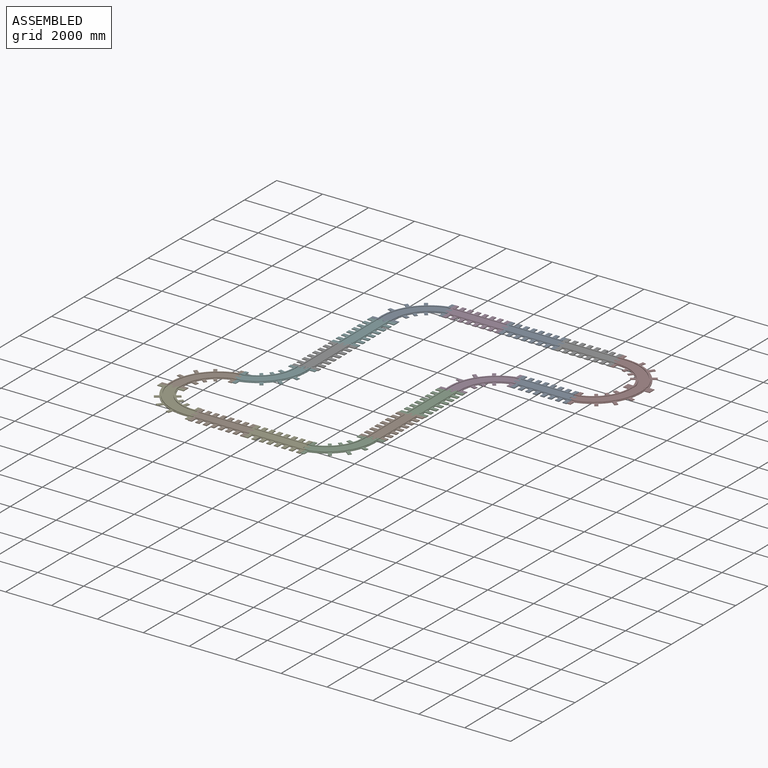
[diagram: assembled view]
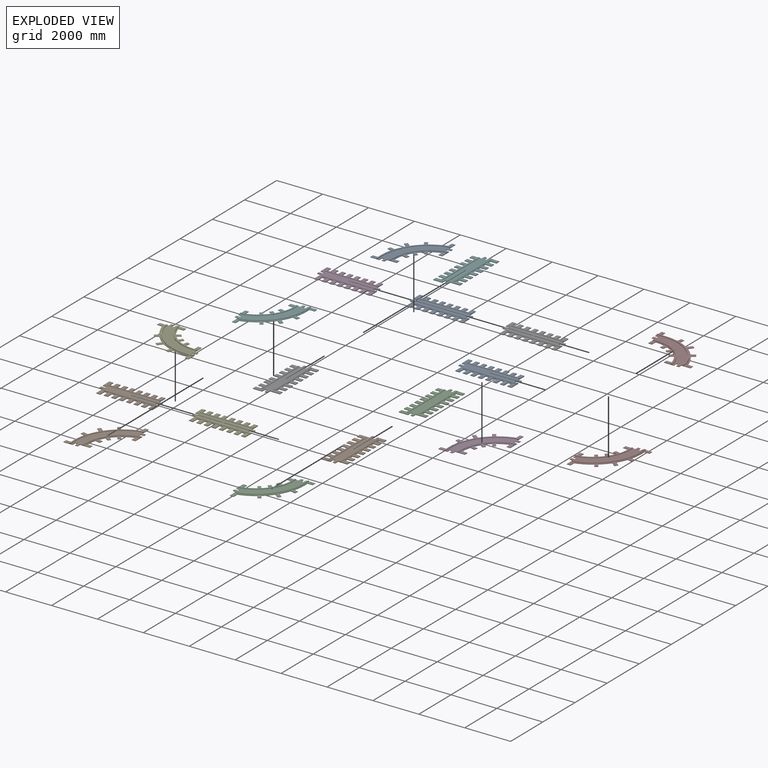
[diagram: exploded view]
GUIDED TOUR — MATED ASSEMBLY (Onshape document 573dee91e4b0ba160fa93150, AutoMate assembly 573dee91e4b0ba160fa93150_8a2142df090cf1d8a7745dd7_3bda912cf309139e063961fb_default)

This assembly has 18 components, labeled P0..P17 below (a component is one placed occurrence of a part; the same part can appear more than once), held together by 17 mates. A mate is a constraint between two components; its type names the relative motion it leaves free:
  FASTENED — locks the two components together rigidly (no relative motion).
Axis/direction vectors are unit vectors and 'through' points are millimeter coordinates, both in the assembly's world frame.

MATES
  1. FASTENED "Fastened 9": P5 <-> P16, direction (0.000, 1.000, 0.000) through (-12836.13, -176.65, -1598.57) mm
  2. FASTENED "Fastened 17": P13 <-> P9, direction (-1.000, 0.000, 0.000) through (-14344.43, -7193.45, -1598.57) mm
  3. FASTENED "Fastened 10": P6 <-> P5, direction (0.000, 1.000, 0.000) through (-12836.13, -2618.22, -1598.57) mm
  4. FASTENED "Fastened 4": P0 <-> P7, direction (1.000, 0.000, 0.000) through (-3393.63, -1669.07, -1598.57) mm
  5. FASTENED "Fastened 1": P14 <-> P8, direction (-1.000, 0.000, 0.000) through (-6520.73, 1692.69, -1598.57) mm
  6. FASTENED "Fastened 2": P15 <-> P14, direction (-1.000, 0.000, 0.000) through (-4079.16, 1692.69, -1598.57) mm
  7. FASTENED "Fastened 11": P10 <-> P3, direction (0.000, 1.000, 0.000) through (-7437.63, -3648.42, -1598.57) mm
  8. FASTENED "Fastened 15": P12 <-> P17, direction (1.000, 0.000, 0.000) through (-13658.90, -10555.21, -1598.57) mm
  9. FASTENED "Fastened 5": P3 <-> P0, direction (1.000, 0.000, 0.000) through (-5835.20, -1669.07, -1598.57) mm
  10. FASTENED "Fastened 12": P2 <-> P1, direction (0.000, 1.000, 0.000) through (-7437.63, -8531.57, -1598.57) mm
  11. FASTENED "Fastened 8": P1 <-> P10, direction (0.000, 1.000, 0.000) through (-7437.63, -6089.99, -1598.57) mm
  12. FASTENED "Fastened 3": P7 <-> P15, direction (0.000, 1.000, 0.000) through (-1945.50, 200.27, -1598.57) mm
  13. FASTENED "Fastened 13": P4 <-> P2, direction (1.000, 0.000, 0.000) through (-8775.75, -10555.21, -1598.57) mm
  14. FASTENED "Fastened 7": P16 <-> P11, direction (1.000, 0.000, 0.000) through (-11233.70, 1802.70, -1598.57) mm
  15. FASTENED "Fastened 6": P11 <-> P8, direction (1.000, 0.000, 0.000) through (-8792.13, 1802.70, -1598.57) mm
  16. FASTENED "Fastened 16": P9 <-> P12, direction (0.000, -1.000, 0.000) through (-15682.54, -9217.09, -1598.57) mm
  17. FASTENED "Fastened 14": P17 <-> P4, direction (1.000, 0.000, 0.000) through (-11217.33, -10555.21, -1598.57) mm

ASSEMBLY ORDER
  1. P10 — the base component [order verified]
  2. P3 [order verified]
  3. P4 [order verified]
  4. P17 [order verified]
  5. P0 [order verified]
  6. P14 [order verified]
  7. P8 [order verified]
  8. P6 [order verified]
  9. P11 [order verified]
  10. P5 [order verified]
  11. P1 [order verified]
  12. P13 [order verified]
  13. P9 [order verified]
  14. P7 [order verified]
  15. P2 [order verified]
  16. P16 [order verified]
  17. P12 [order verified]
  18. P15 [order verified]
Order-tag legend:
  [order verified] — this step's position reverses a verified removal order: the component was checked to insert without passing through the ones already placed.

Of the 18 components, 18 carry the full construction recipe — the FeatureScript program that regenerates the part's solid from scratch; the rest are supplied as boundary geometry only.
Because this assembly has more than 12 components, the tour below covers the 12 most significant ones individually (every recipe-attached component first, then the largest by part volume), in assembly order; the remaining 6 are summarized together in a grouped section at the end.
Each toured component is shown spotlighted twice — in the assembled view, then in the exploded view, where a leader line traces a displaced component back to its assembled socket (saturated green if recipe-attached, orange if geometry-only; every other component desaturated gray) — followed by its recipe or geometry summary and the mates that hold it.
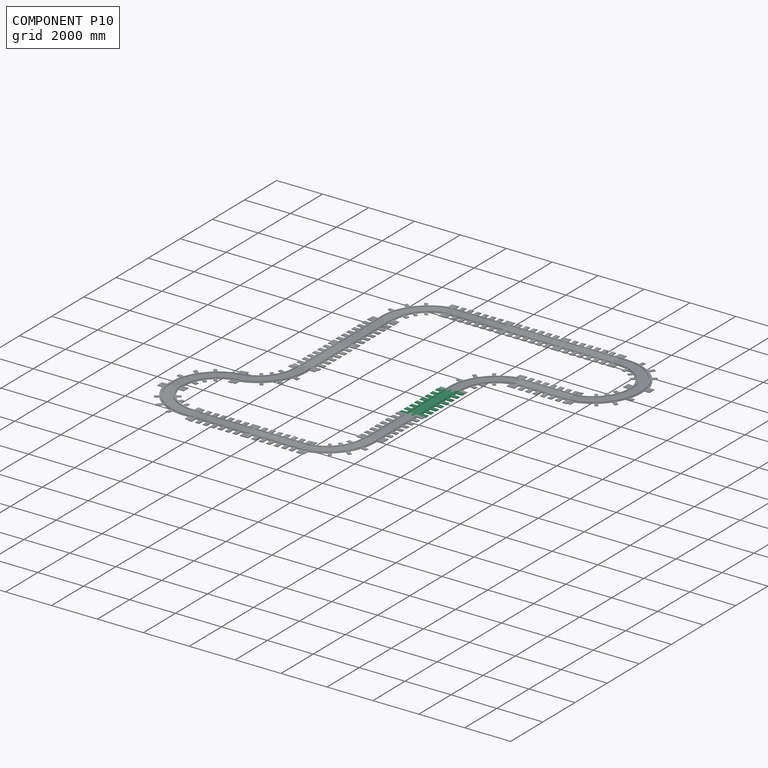
[diagram: component P10 — assembled]
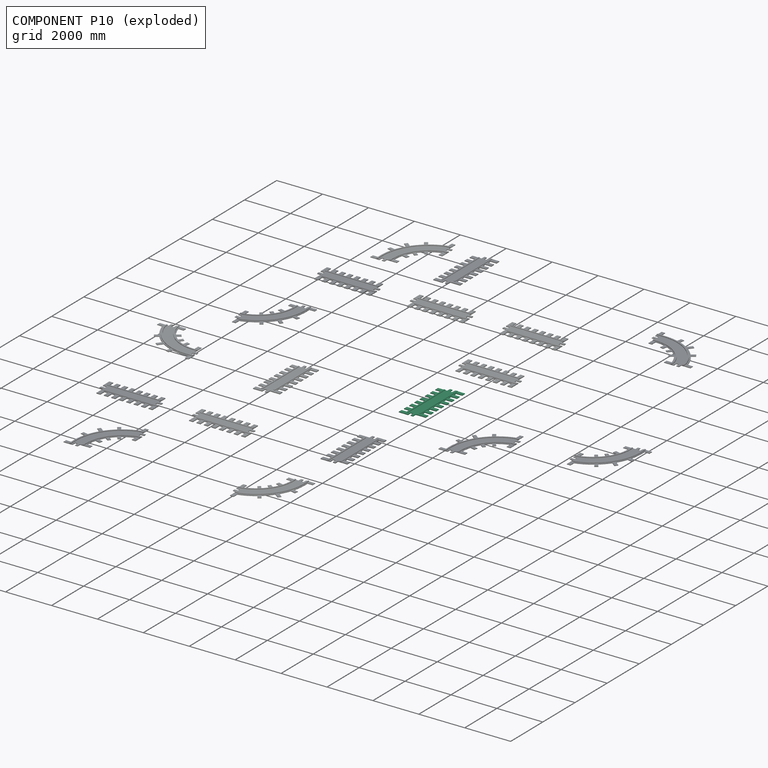
[diagram: component P10 — exploded]
COMPONENT P10 — same part as P0 (CADFS 00159002); its construction recipe is shown at P0.
Held by: FASTENED mate "Fastened 11" to P3; FASTENED mate "Fastened 8" to P1.
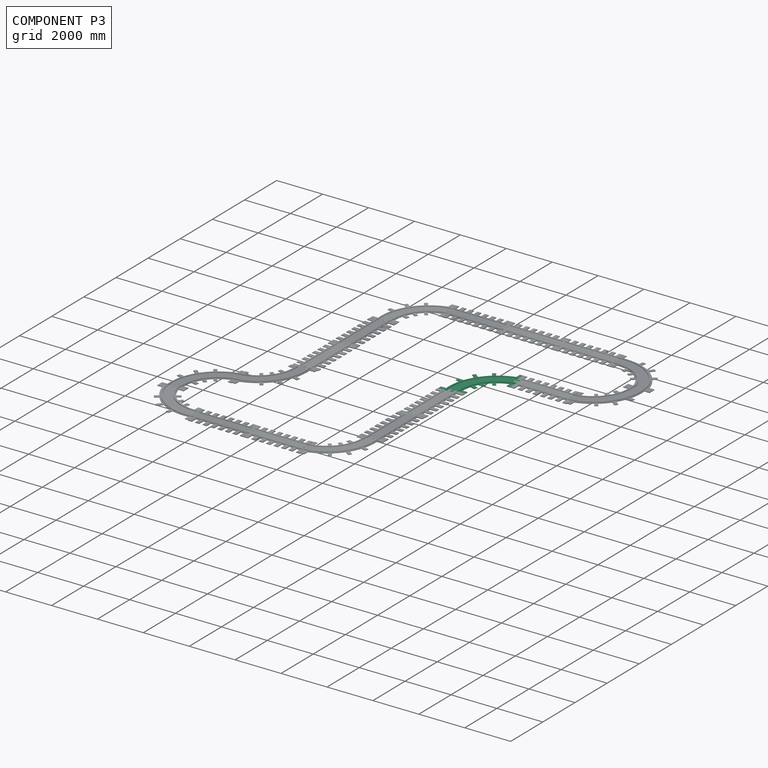
[diagram: component P3 — assembled]
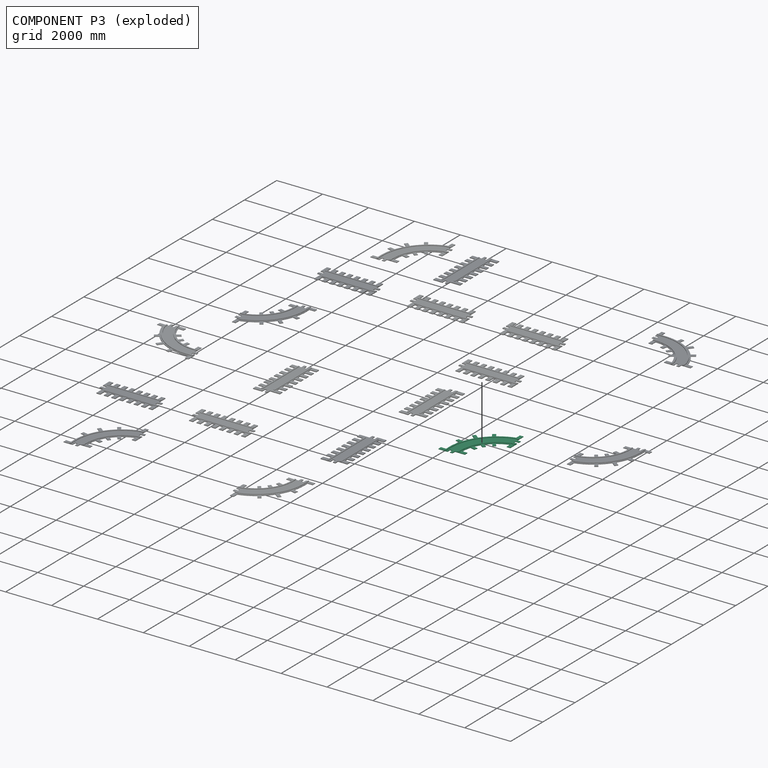
[diagram: component P3 — exploded]
COMPONENT P3 — same part as P2 (CADFS 00160971); its construction recipe is shown at P2.
Held by: FASTENED mate "Fastened 11" to P10; FASTENED mate "Fastened 5" to P0.
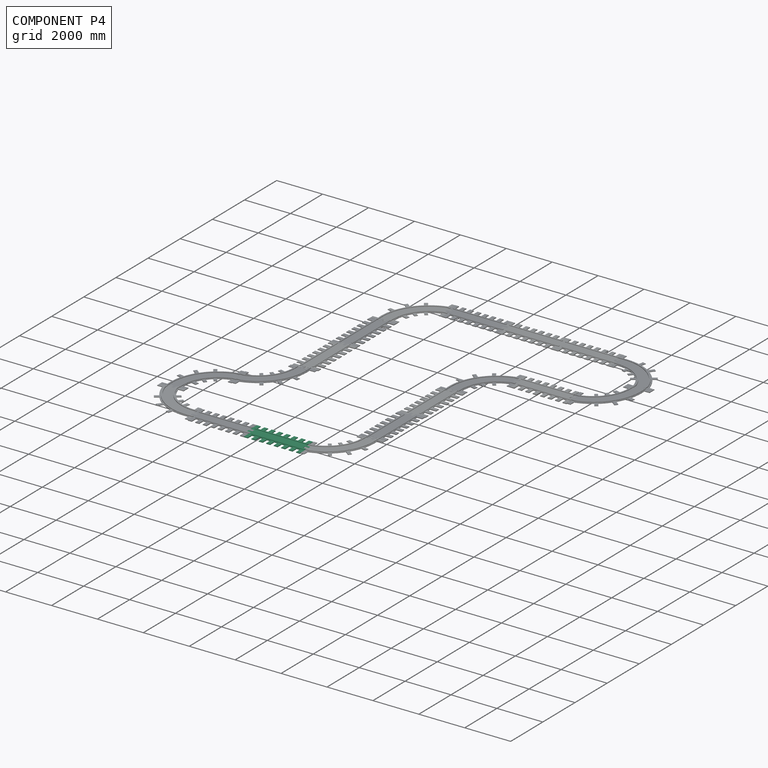
[diagram: component P4 — assembled]
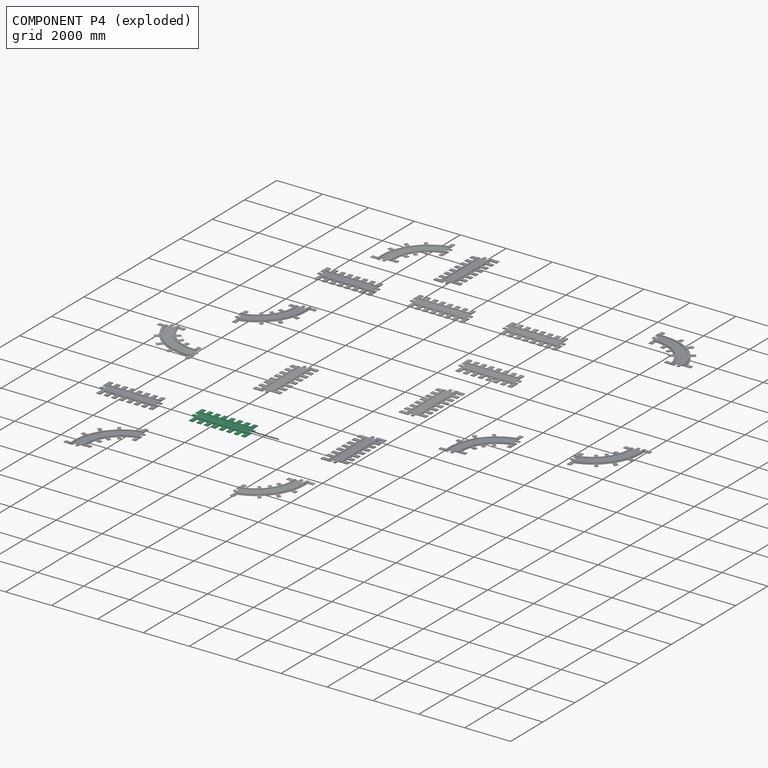
[diagram: component P4 — exploded]
COMPONENT P4 — same part as P0 (CADFS 00159002); its construction recipe is shown at P0.
Held by: FASTENED mate "Fastened 13" to P2; FASTENED mate "Fastened 14" to P17.
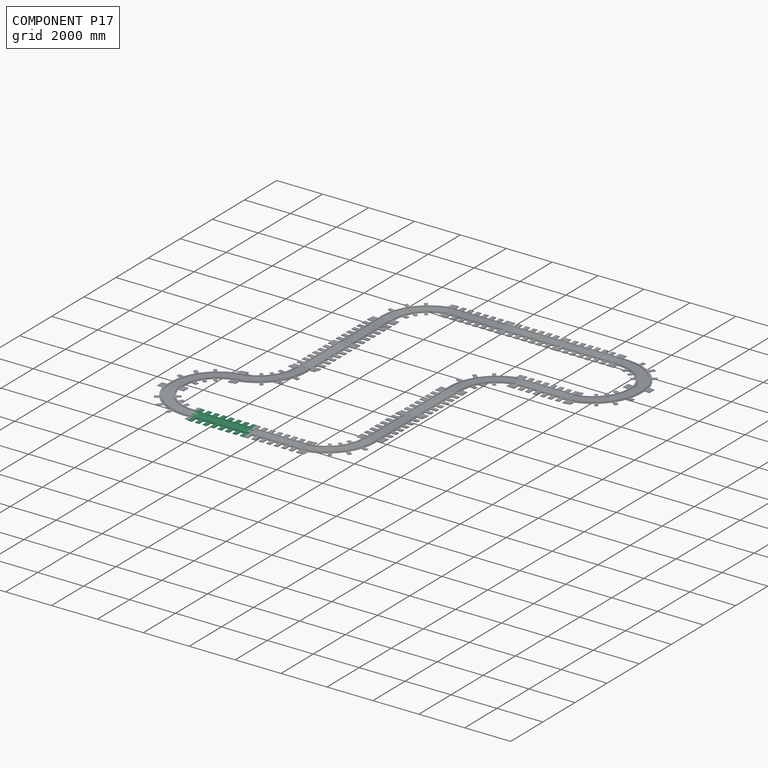
[diagram: component P17 — assembled]
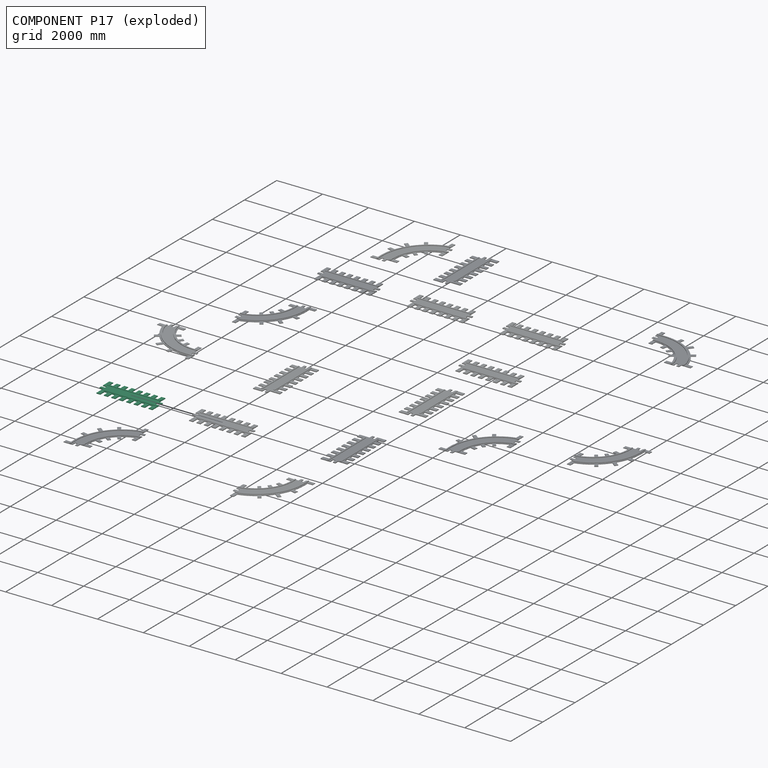
[diagram: component P17 — exploded]
COMPONENT P17 — same part as P0 (CADFS 00159002); its construction recipe is shown at P0.
Held by: FASTENED mate "Fastened 15" to P12; FASTENED mate "Fastened 14" to P4.
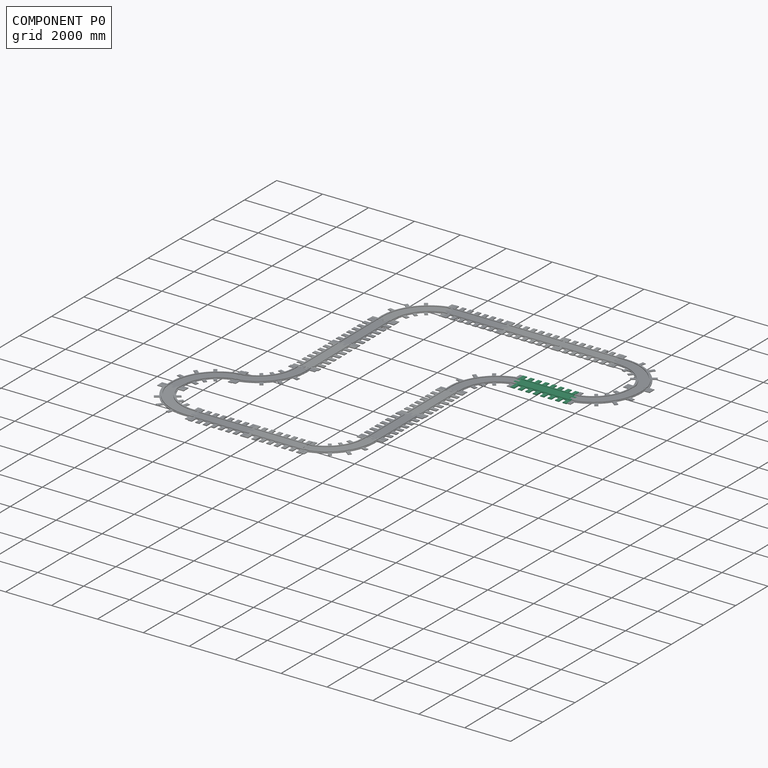
[diagram: component P0 — assembled]
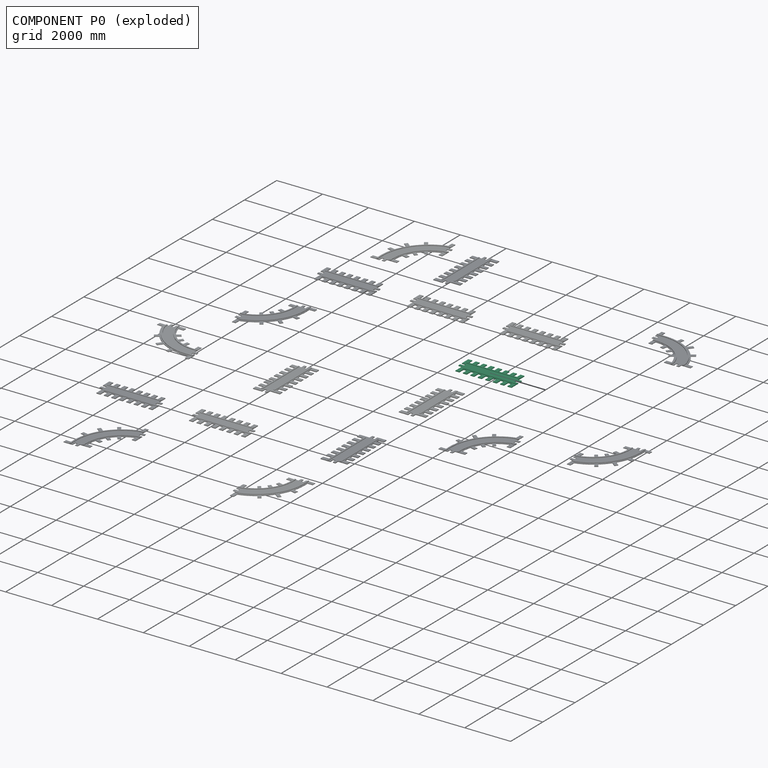
[diagram: component P0 — exploded]
COMPONENT P0 — recipe-attached (CADFS 00159002, mesh-verified: the recipe's output STEP matches this component's geometry to below the mesh-comparison resolution (tessellation chordal tolerance ~4.22 mm)).
Held by: FASTENED mate "Fastened 4" to P7; FASTENED mate "Fastened 5" to P3.
Construction recipe (FeatureScript — the CAD program that rebuilds this solid; sketch coordinates are in the units given by the * unit suffixes, e.g. mm):

FeatureScript 1511;
import(path : "onshape/std/geometry.fs", version : "1511.0");
import(path : "onshape/std/common.fs", version : "1511.0");
const mm = millimeter;
const VERTEX = EntityType.VERTEX;
const EDGE = EntityType.EDGE;
const FACE = EntityType.FACE;
const BODY = EntityType.BODY;
function v(x, y){return vector(x, y);}
function OD(order){return orderDisambiguation(order);}
function OSD(set){return originalSetDisambiguation(set);}
function TD(topology){return topologyDisambiguation(topology);}
function TDD(query){return trueDependencyDisambiguation(query);}
function sQuery(a, b, c) {return sketchEntityQuery(a, b, c);}

annotation { "Feature Type Name" : "Feature", "Feature Type Description" : "" }
export const myFeature = defineFeature(function(context is Context, id is Id, definition is map)
    precondition{}
    {
        {
            var Q0;
            Q0=qCreatedBy(makeId("Top.planeOp"),FACE);
            var sketch = newSketch(context, id + "F0", { "sketchPlane" : qUnion([Q0])});
            skLineSegment(sketch, "E0", {"start": v(0, 0) * mm, "end": v(157.48, 0) * mm});
            skLineSegment(sketch, "E1", {"start": v(170.18, -12.7) * mm, "end": v(170.18, -97.3) * mm});
            skLineSegment(sketch, "E2", {"start": v(157.48, -110) * mm, "end": v(12.7, -110) * mm});
            skLineSegment(sketch, "E3", {"start": v(0, -122.7) * mm, "end": v(0, -207.32) * mm});
            skLineSegment(sketch, "E4", {"start": v(12.7, -220.02) * mm, "end": v(170.18, -220.02) * mm});
            skLineSegment(sketch, "E5", {"start": v(170.18, -220.02) * mm, "end": v(170.18, -647.87) * mm});
            skLineSegment(sketch, "E6", {"start": v(170.18, -647.87) * mm, "end": v(0, -647.87) * mm});
            skLineSegment(sketch, "E7", {"start": v(0, -647.87) * mm, "end": v(0, -389.82) * mm});
            skLineSegment(sketch, "E8", {"start": v(0, -389.82) * mm, "end": v(-154.3, -389.82) * mm});
            skLineSegment(sketch, "E9", {"start": v(-154.3, -389.82) * mm, "end": v(-154.3, -647.87) * mm});
            skLineSegment(sketch, "E10", {"start": v(-154.3, -647.87) * mm, "end": v(-324.49, -647.87) * mm});
            skLineSegment(sketch, "E11", {"start": v(-324.49, -647.87) * mm, "end": v(-324.49, -389.82) * mm});
            skLineSegment(sketch, "E12", {"start": v(-324.49, -389.82) * mm, "end": v(-478.8, -389.82) * mm});
            skLineSegment(sketch, "E13", {"start": v(-478.8, -389.82) * mm, "end": v(-478.8, -647.87) * mm});
            skLineSegment(sketch, "E14", {"start": v(-478.8, -647.87) * mm, "end": v(-648.97, -647.87) * mm});
            skLineSegment(sketch, "E15", {"start": v(-648.97, -647.87) * mm, "end": v(-648.97, -389.82) * mm});
            skLineSegment(sketch, "E16", {"start": v(-648.97, -389.82) * mm, "end": v(-803.28, -389.82) * mm});
            skLineSegment(sketch, "E17", {"start": v(-803.28, -389.82) * mm, "end": v(-803.28, -647.87) * mm});
            skLineSegment(sketch, "E18", {"start": v(-803.28, -647.87) * mm, "end": v(-973.46, -647.87) * mm});
            skLineSegment(sketch, "E19", {"start": v(-973.46, -647.87) * mm, "end": v(-973.46, -389.82) * mm});
            skPoint(sketch, "E20.visualSharp", {"position": v(170.18, 0) * mm});
            skArc(sketch, "E20.filletArc", {"start": v(170.18, -12.7) * mm, "mid": v(166.46, -3.72) * mm, "end": v(157.48, 0) * mm});
            skPoint(sketch, "E21.visualSharp", {"position": v(170.18, -110) * mm});
            skArc(sketch, "E21.filletArc", {"start": v(157.48, -110) * mm, "mid": v(166.46, -106.29) * mm, "end": v(170.18, -97.3) * mm});
            skPoint(sketch, "E22.visualSharp", {"position": v(0, -220.02) * mm});
            skArc(sketch, "E22.filletArc", {"start": v(0, -207.32) * mm, "mid": v(3.72, -216.3) * mm, "end": v(12.7, -220.02) * mm});
            skPoint(sketch, "E23.visualSharp", {"position": v(0, -110) * mm});
            skArc(sketch, "E23.filletArc", {"start": v(12.7, -110) * mm, "mid": v(3.72, -113.73) * mm, "end": v(0, -122.7) * mm});
            skLineSegment(sketch, "E24", {"start": v(-973.46, -389.82) * mm, "end": v(-1127.76, -389.82) * mm});
            skLineSegment(sketch, "E25", {"start": v(-1127.76, -389.82) * mm, "end": v(-1127.76, -647.87) * mm});
            skLineSegment(sketch, "E26", {"start": v(-1127.76, -647.87) * mm, "end": v(-1297.94, -647.87) * mm});
            skLineSegment(sketch, "E27", {"start": v(-1297.94, -647.87) * mm, "end": v(-1297.94, -389.82) * mm});
            skLineSegment(sketch, "E28", {"start": v(-1297.94, -389.82) * mm, "end": v(-1452.25, -389.82) * mm});
            skLineSegment(sketch, "E29", {"start": v(-1452.25, -389.82) * mm, "end": v(-1452.25, -647.87) * mm});
            skLineSegment(sketch, "E30", {"start": v(-1452.25, -647.87) * mm, "end": v(-1622.42, -647.87) * mm});
            skLineSegment(sketch, "E31", {"start": v(-1622.42, -647.87) * mm, "end": v(-1622.42, -389.82) * mm});
            skLineSegment(sketch, "E32", {"start": v(-1622.42, -389.82) * mm, "end": v(-1776.73, -389.82) * mm});
            skLineSegment(sketch, "E33", {"start": v(-1776.73, -389.82) * mm, "end": v(-1776.73, -647.87) * mm});
            skLineSegment(sketch, "E34", {"start": v(-1776.73, -647.87) * mm, "end": v(-1946.9, -647.87) * mm});
            skLineSegment(sketch, "E35", {"start": v(-1946.9, -647.87) * mm, "end": v(-1946.9, -389.82) * mm});
            skLineSegment(sketch, "E36", {"start": v(-1946.9, -389.82) * mm, "end": v(-2101.22, -389.82) * mm});
            skLineSegment(sketch, "E37", {"start": v(-2101.22, -389.82) * mm, "end": v(-2101.22, -647.87) * mm});
            skLineSegment(sketch, "E38", {"start": v(-2101.22, -647.87) * mm, "end": v(-2271.4, -647.87) * mm});
            skLineSegment(sketch, "E39", {"start": v(-2271.4, -647.87) * mm, "end": v(-2271.4, -220.02) * mm});
            skLineSegment(sketch, "E40", {"start": v(-2271.4, -220.02) * mm, "end": v(-2428.88, -220.02) * mm});
            skLineSegment(sketch, "E41", {"start": v(-2441.58, -207.32) * mm, "end": v(-2441.58, -122.7) * mm});
            skLineSegment(sketch, "E42", {"start": v(-2428.88, -110) * mm, "end": v(-2284.1, -110) * mm});
            skLineSegment(sketch, "E43", {"start": v(-2271.4, -97.3) * mm, "end": v(-2271.4, -12.7) * mm});
            skLineSegment(sketch, "E44", {"start": v(-2284.1, 0) * mm, "end": v(-2441.58, 0) * mm});
            skLineSegment(sketch, "E45", {"start": v(-2441.58, 0) * mm, "end": v(-2441.58, 399.88) * mm});
            skPoint(sketch, "E46.visualSharp", {"position": v(-2441.58, -110) * mm});
            skArc(sketch, "E46.filletArc", {"start": v(-2428.88, -110) * mm, "mid": v(-2437.86, -113.73) * mm, "end": v(-2441.58, -122.7) * mm});
            skPoint(sketch, "E47.visualSharp", {"position": v(-2441.58, -220.02) * mm});
            skArc(sketch, "E47.filletArc", {"start": v(-2441.58, -207.32) * mm, "mid": v(-2437.86, -216.3) * mm, "end": v(-2428.88, -220.02) * mm});
            skPoint(sketch, "E48.visualSharp", {"position": v(-2271.4, -110) * mm});
            skArc(sketch, "E48.filletArc", {"start": v(-2284.1, -110) * mm, "mid": v(-2275.11, -106.29) * mm, "end": v(-2271.4, -97.3) * mm});
            skPoint(sketch, "E49.visualSharp", {"position": v(-2271.4, 0) * mm});
            skArc(sketch, "E49.filletArc", {"start": v(-2271.4, -12.7) * mm, "mid": v(-2275.11, -3.72) * mm, "end": v(-2284.1, 0) * mm});
            skLineSegment(sketch, "E50", {"start": v(-2441.58, 399.88) * mm, "end": v(-2271.4, 399.88) * mm});
            skLineSegment(sketch, "E51", {"start": v(-2271.4, 399.88) * mm, "end": v(-2271.4, 172.14) * mm});
            skLineSegment(sketch, "E52", {"start": v(-2271.4, 172.14) * mm, "end": v(-2117.1, 172.14) * mm});
            skLineSegment(sketch, "E53", {"start": v(-2117.1, 172.14) * mm, "end": v(-2117.1, 399.88) * mm});
            skLineSegment(sketch, "E54", {"start": v(-2117.1, 399.88) * mm, "end": v(-1946.91, 399.88) * mm});
            skLineSegment(sketch, "E55", {"start": v(-1946.91, 399.88) * mm, "end": v(-1946.91, 172.14) * mm});
            skLineSegment(sketch, "E56", {"start": v(-1946.91, 172.14) * mm, "end": v(-1792.6, 172.14) * mm});
            skLineSegment(sketch, "E57", {"start": v(-1792.6, 172.14) * mm, "end": v(-1792.6, 399.88) * mm});
            skLineSegment(sketch, "E58", {"start": v(-1792.6, 399.88) * mm, "end": v(-1622.43, 399.88) * mm});
            skLineSegment(sketch, "E59", {"start": v(-1622.43, 399.88) * mm, "end": v(-1622.43, 172.14) * mm});
            skLineSegment(sketch, "E60", {"start": v(-1622.43, 172.14) * mm, "end": v(-1468.12, 172.14) * mm});
            skLineSegment(sketch, "E61", {"start": v(-1468.12, 172.14) * mm, "end": v(-1468.12, 400.96) * mm});
            skLineSegment(sketch, "E62", {"start": v(-1468.12, 400.96) * mm, "end": v(-1297.94, 400.96) * mm});
            skLineSegment(sketch, "E63", {"start": v(-1297.94, 400.96) * mm, "end": v(-1297.94, 172.14) * mm});
            skLineSegment(sketch, "E64", {"start": v(-1297.94, 172.14) * mm, "end": v(-1143.64, 172.14) * mm});
            skLineSegment(sketch, "E65", {"start": v(-1143.64, 172.14) * mm, "end": v(-1143.64, 400.96) * mm});
            skLineSegment(sketch, "E66", {"start": v(-1143.64, 400.96) * mm, "end": v(-973.46, 400.96) * mm});
            skLineSegment(sketch, "E67", {"start": v(-973.46, 400.96) * mm, "end": v(-973.46, 172.14) * mm});
            skLineSegment(sketch, "E68", {"start": v(-973.46, 172.14) * mm, "end": v(-819.15, 172.14) * mm});
            skLineSegment(sketch, "E69", {"start": v(-819.15, 172.14) * mm, "end": v(-819.15, 400.96) * mm});
            skLineSegment(sketch, "E70", {"start": v(-819.15, 400.96) * mm, "end": v(-648.97, 400.96) * mm});
            skLineSegment(sketch, "E71", {"start": v(-648.97, 400.96) * mm, "end": v(-648.97, 172.14) * mm});
            skLineSegment(sketch, "E72", {"start": v(-648.97, 172.14) * mm, "end": v(-494.67, 172.14) * mm});
            skLineSegment(sketch, "E73", {"start": v(-494.67, 172.14) * mm, "end": v(-494.67, 400.96) * mm});
            skLineSegment(sketch, "E74", {"start": v(-494.67, 400.96) * mm, "end": v(-324.49, 400.96) * mm});
            skLineSegment(sketch, "E75", {"start": v(-324.49, 400.96) * mm, "end": v(-324.49, 172.14) * mm});
            skLineSegment(sketch, "E76", {"start": v(-324.49, 172.14) * mm, "end": v(-170.18, 172.14) * mm});
            skLineSegment(sketch, "E77", {"start": v(-170.18, 172.14) * mm, "end": v(-170.18, 400.96) * mm});
            skLineSegment(sketch, "E78", {"start": v(-170.18, 400.96) * mm, "end": v(0, 400.96) * mm});
            skLineSegment(sketch, "E79", {"start": v(0, 400.96) * mm, "end": v(0, 172.14) * mm});
            skLineSegment(sketch, "E80", {"start": v(0, 172.14) * mm, "end": v(0, 0) * mm});
            skSolve(sketch);
        }
        {
            var Q0;
            Q0=makeQuery(id+"F0.imprint","IMPRINT",FACE,{"disambiguationData":[TD([[makeQuery(id+"F0.imprint","IMPRINT",EDGE,{"derivedFrom":sQuery(id+"F0.wireOp",EDGE,"E0")}),-1.0]])]});
            var sketch = newSketch(context, id + "F1", { "sketchPlane" : qUnion([Q0])});
            skLineSegment(sketch, "E81", {"start": v(-2314.86, 138.26) * mm, "end": v(0, 138.26) * mm});
            skLineSegment(sketch, "E82.0", {"start": v(-2314.86, 81.11) * mm, "end": v(0, 81.11) * mm});
            skLineSegment(sketch, "E83", {"start": v(-2160.59, -353.29) * mm, "end": v(154.12, -353.29) * mm});
            skLineSegment(sketch, "E84.0", {"start": v(-2160.59, -296.14) * mm, "end": v(154.12, -296.14) * mm});
            skLineSegment(sketch, "E85", {"start": v(-2314.86, 138.26) * mm, "end": v(-2314.86, 81.11) * mm});
            skLineSegment(sketch, "E86", {"start": v(-2160.59, -296.14) * mm, "end": v(-2160.59, -353.29) * mm});
            skLineSegment(sketch, "E87", {"start": v(154.12, -296.14) * mm, "end": v(154.12, -353.29) * mm});
            skLineSegment(sketch, "E88", {"start": v(0, 138.26) * mm, "end": v(0, 81.11) * mm});
            skSolve(sketch);
        }
        {
            var Q0;
            Q0=qSketchRegion(id+"F0",true);
            extrude(context, id + "F2", {"entities" : qUnion([Q0]), "depth" : 31.75 * mm});
        }
        {
            var Q0;
            Q0=qSketchRegion(id+"F1",true);
            extrude(context, id + "F3", {"entities" : qUnion([Q0]), "operationType" : NewBodyOperationType.ADD, "depth" : 50.8 * mm});
        }
    });
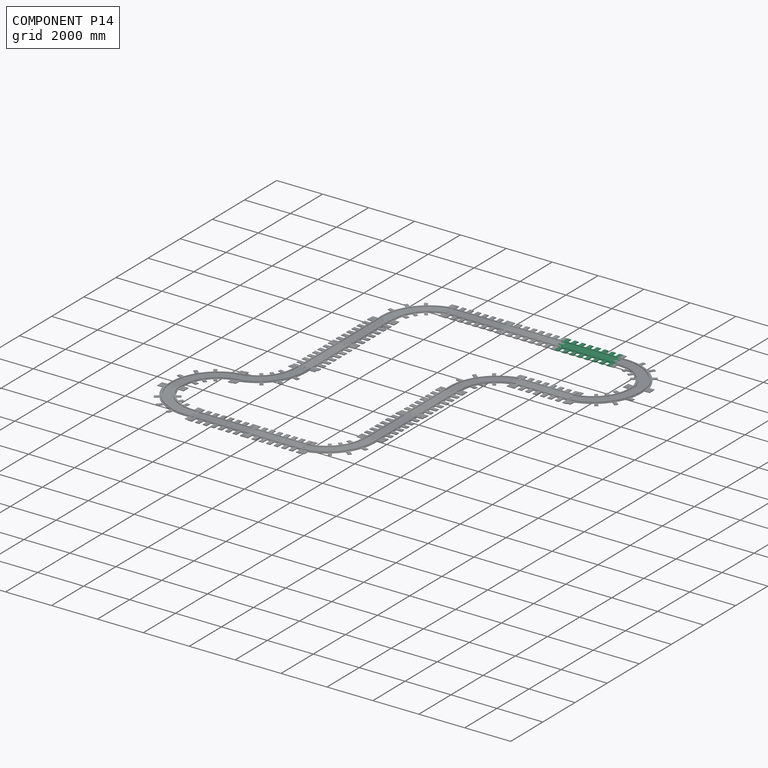
[diagram: component P14 — assembled]
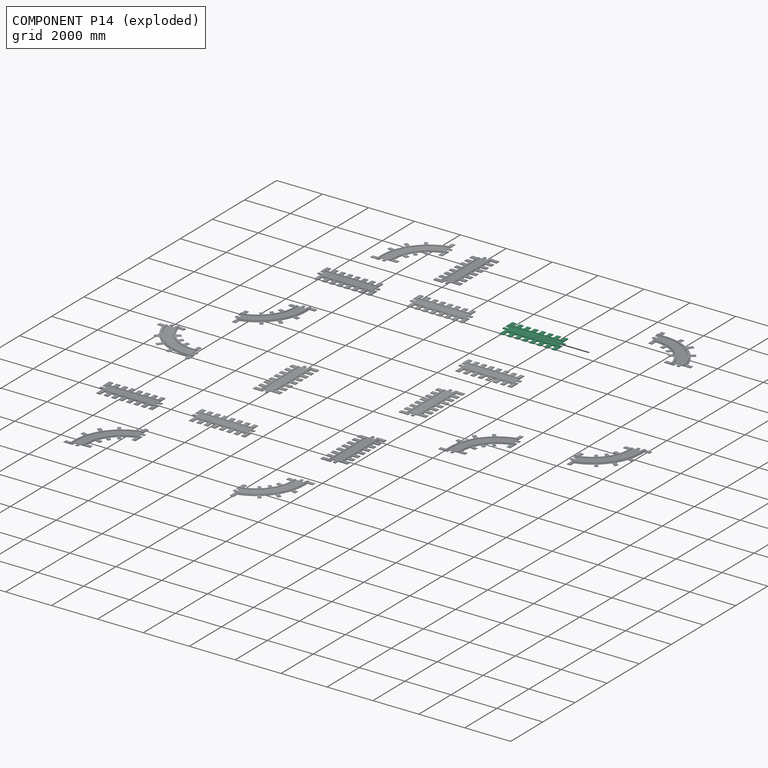
[diagram: component P14 — exploded]
COMPONENT P14 — same part as P0 (CADFS 00159002); its construction recipe is shown at P0.
Held by: FASTENED mate "Fastened 1" to P8; FASTENED mate "Fastened 2" to P15.
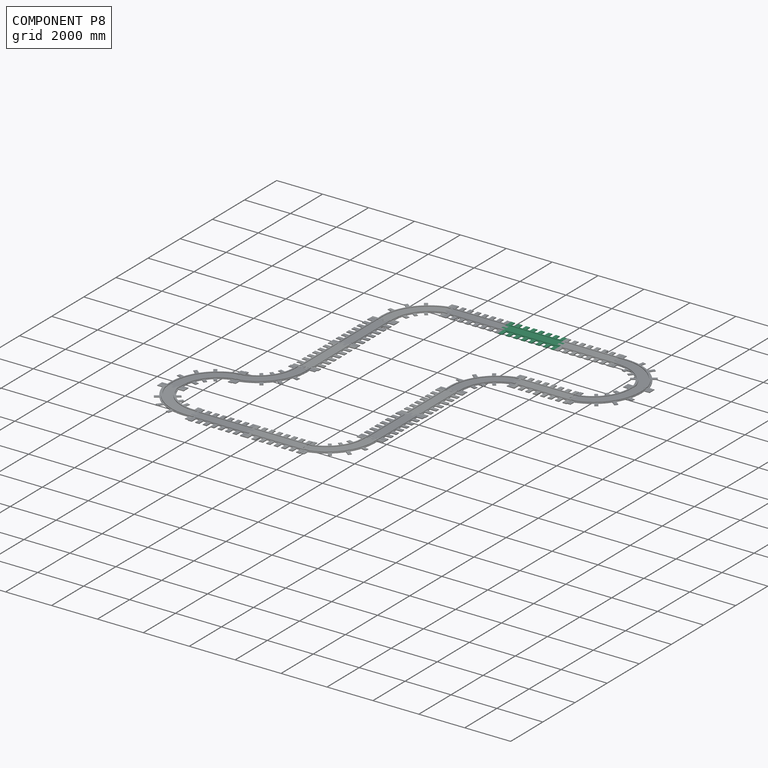
[diagram: component P8 — assembled]
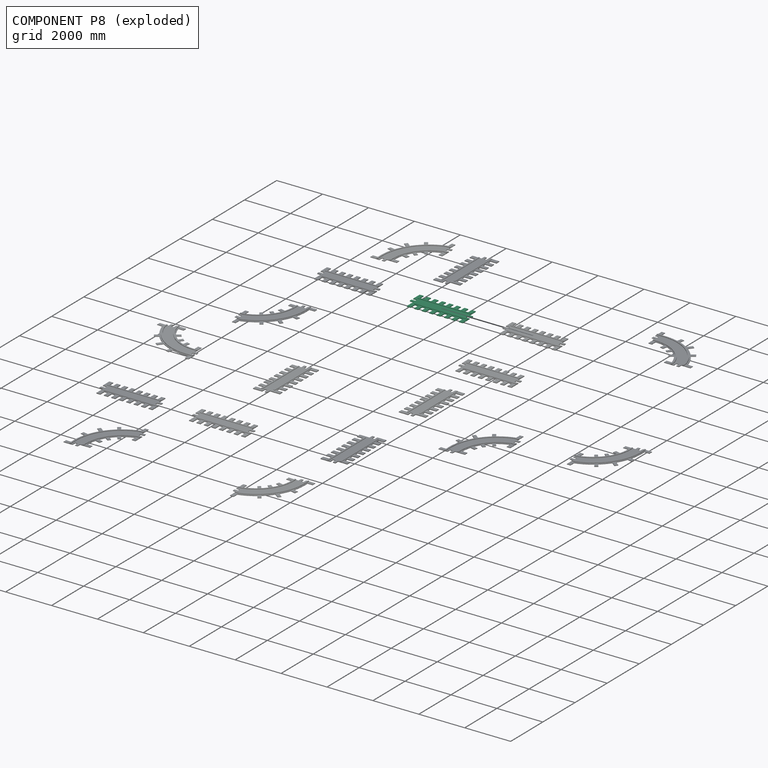
[diagram: component P8 — exploded]
COMPONENT P8 — same part as P0 (CADFS 00159002); its construction recipe is shown at P0.
Held by: FASTENED mate "Fastened 1" to P14; FASTENED mate "Fastened 6" to P11.
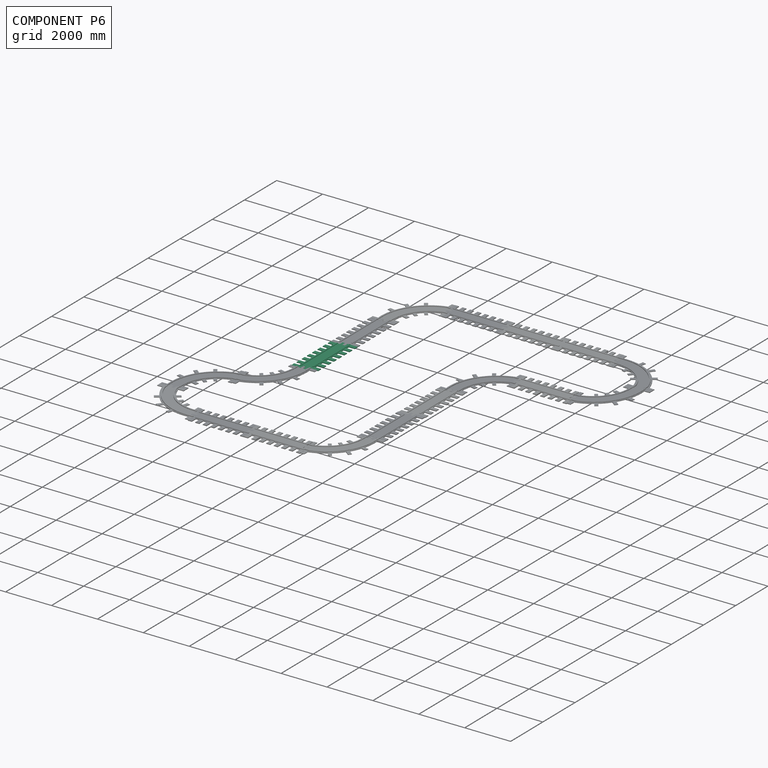
[diagram: component P6 — assembled]
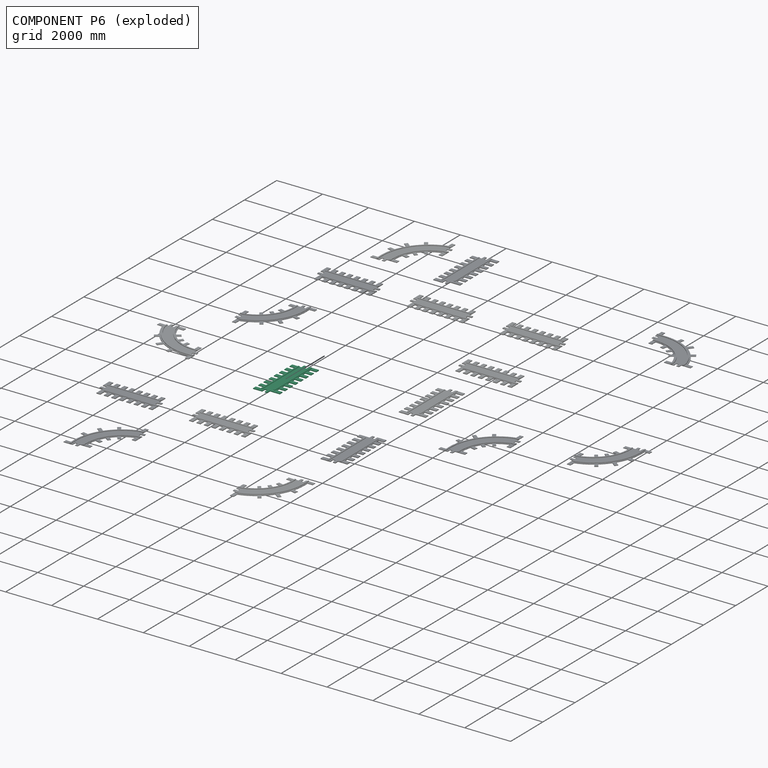
[diagram: component P6 — exploded]
COMPONENT P6 — same part as P0 (CADFS 00159002); its construction recipe is shown at P0.
Held by: FASTENED mate "Fastened 10" to P5.
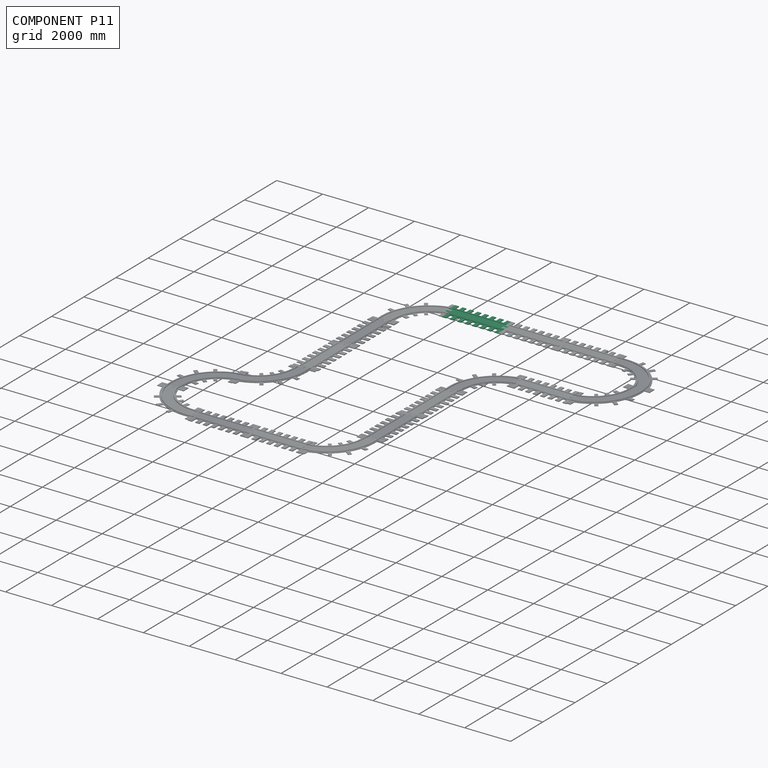
[diagram: component P11 — assembled]
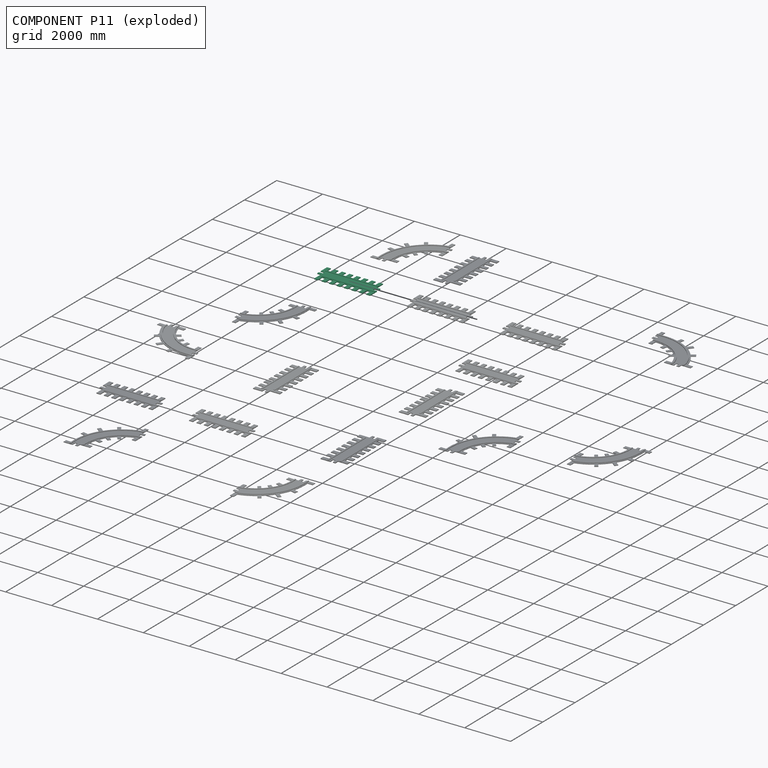
[diagram: component P11 — exploded]
COMPONENT P11 — same part as P0 (CADFS 00159002); its construction recipe is shown at P0.
Held by: FASTENED mate "Fastened 7" to P16; FASTENED mate "Fastened 6" to P8.
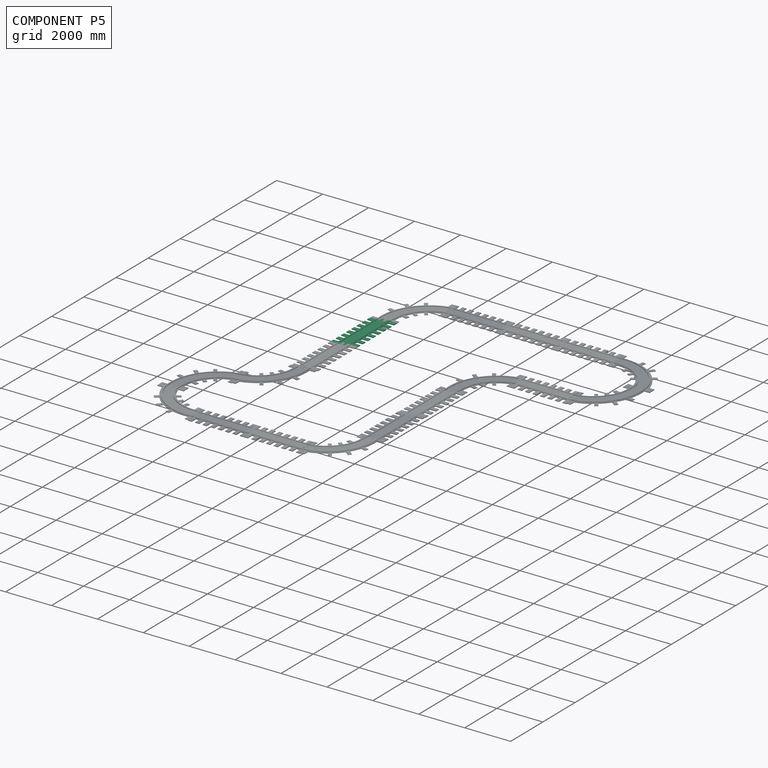
[diagram: component P5 — assembled]
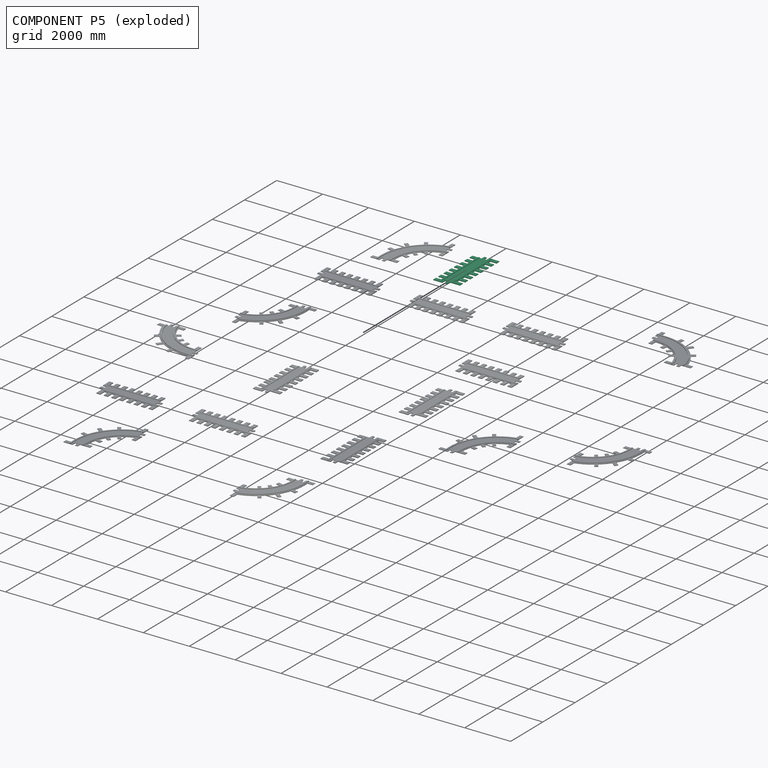
[diagram: component P5 — exploded]
COMPONENT P5 — same part as P0 (CADFS 00159002); its construction recipe is shown at P0.
Held by: FASTENED mate "Fastened 9" to P16; FASTENED mate "Fastened 10" to P6.
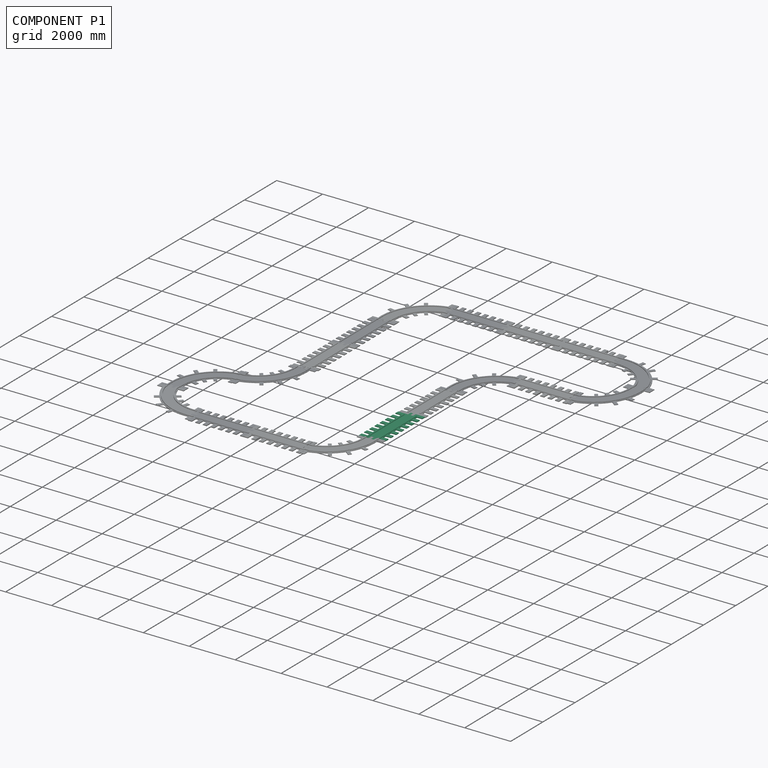
[diagram: component P1 — assembled]
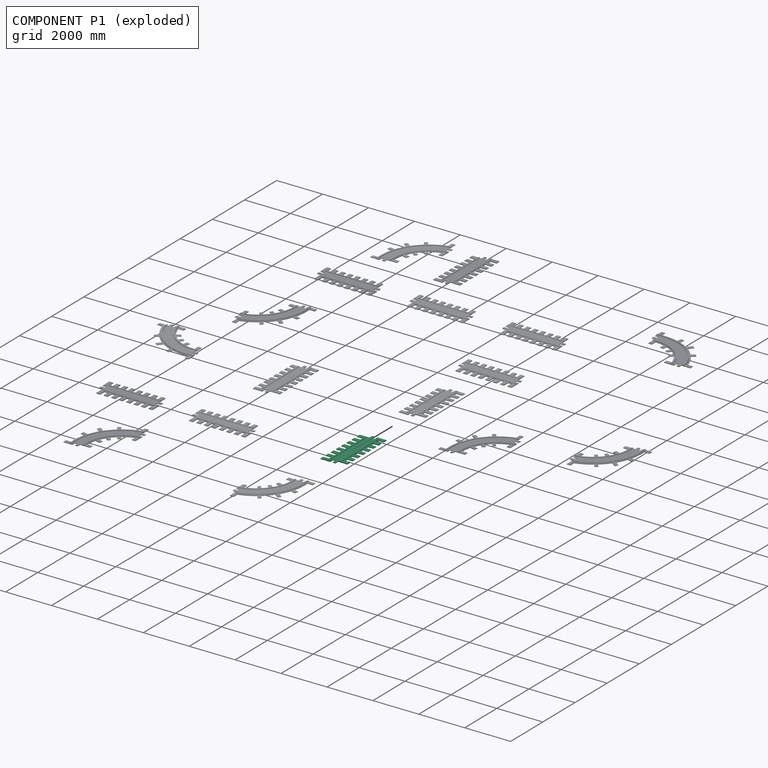
[diagram: component P1 — exploded]
COMPONENT P1 — same part as P0 (CADFS 00159002); its construction recipe is shown at P0.
Held by: FASTENED mate "Fastened 12" to P2; FASTENED mate "Fastened 8" to P10.
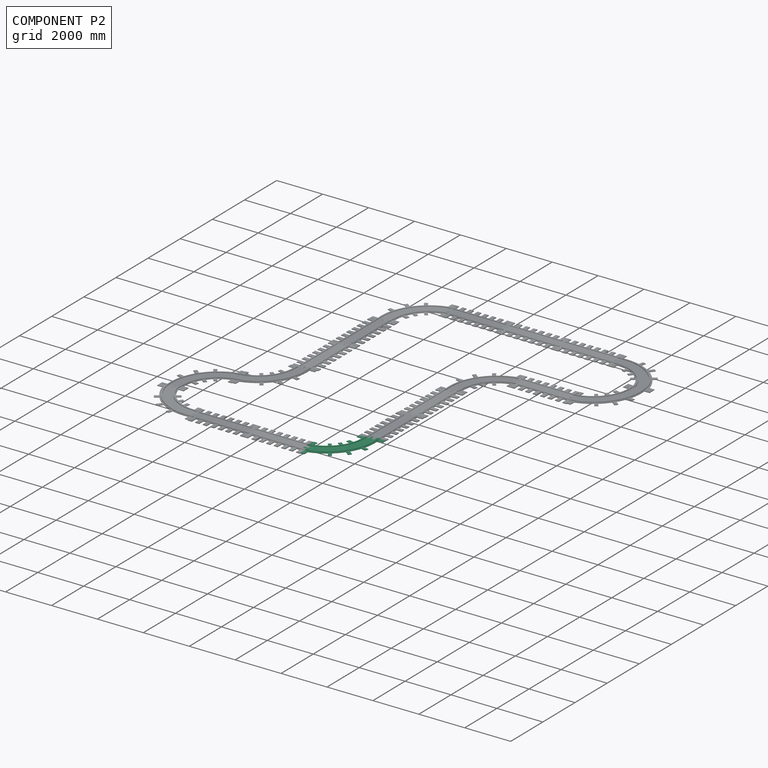
[diagram: component P2 — assembled]
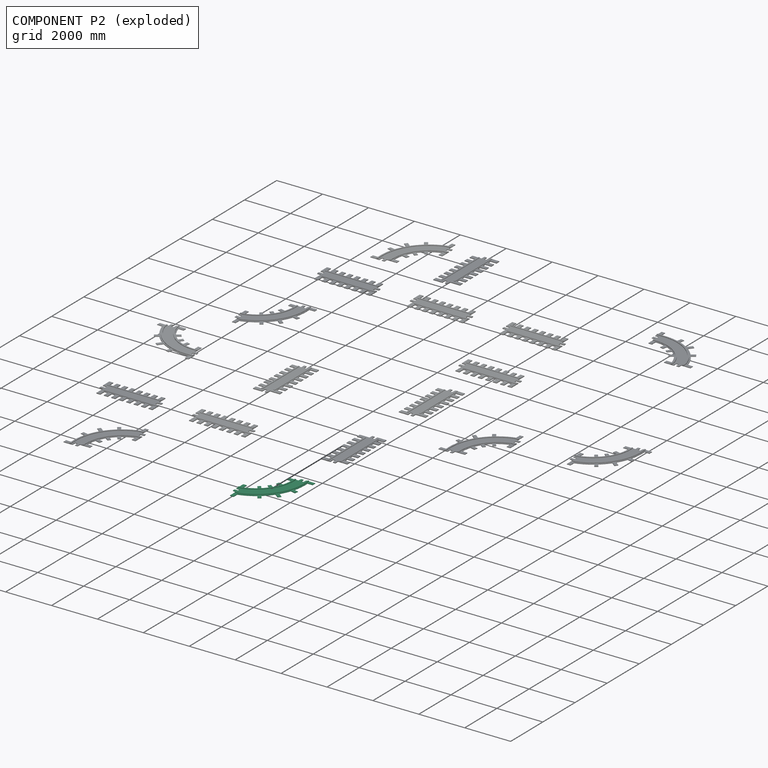
[diagram: component P2 — exploded]
COMPONENT P2 — recipe-attached (CADFS 00160971, mesh-verified: the recipe's output STEP matches this component's geometry to below the mesh-comparison resolution (tessellation chordal tolerance ~4.95 mm)).
Held by: FASTENED mate "Fastened 12" to P1; FASTENED mate "Fastened 13" to P4.
Construction recipe (FeatureScript — the CAD program that rebuilds this solid; sketch coordinates are in the units given by the * unit suffixes, e.g. mm):

FeatureScript 1511;
import(path : "onshape/std/geometry.fs", version : "1511.0");
import(path : "onshape/std/common.fs", version : "1511.0");
const mm = millimeter;
const VERTEX = EntityType.VERTEX;
const EDGE = EntityType.EDGE;
const FACE = EntityType.FACE;
const BODY = EntityType.BODY;
function v(x, y){return vector(x, y);}
function OD(order){return orderDisambiguation(order);}
function OSD(set){return originalSetDisambiguation(set);}
function TD(topology){return topologyDisambiguation(topology);}
function TDD(query){return trueDependencyDisambiguation(query);}
function sQuery(a, b, c) {return sketchEntityQuery(a, b, c);}

annotation { "Feature Type Name" : "Feature", "Feature Type Description" : "" }
export const myFeature = defineFeature(function(context is Context, id is Id, definition is map)
    precondition{}
    {
        {
            var Q0;
            Q0=qCreatedBy(makeId("Top.planeOp"),FACE);
            var sketch = newSketch(context, id + "F0", { "sketchPlane" : qUnion([Q0])});
            skLineSegment(sketch, "E0", {"start": v(-123.12, 340.2) * mm, "end": v(-123.12, -52.81) * mm});
            skLineSegment(sketch, "E1", {"start": v(-123.12, -52.81) * mm, "end": v(31.19, -52.81) * mm});
            skLineSegment(sketch, "E2", {"start": v(31.19, -52.81) * mm, "end": v(31.19, -162.82) * mm});
            skLineSegment(sketch, "E3", {"start": v(31.19, -162.82) * mm, "end": v(-123.12, -162.82) * mm});
            skLineSegment(sketch, "E4", {"start": v(-123.12, -162.82) * mm, "end": v(-123.12, -272.82) * mm});
            skLineSegment(sketch, "E5", {"start": v(-123.12, -272.82) * mm, "end": v(31.19, -272.82) * mm});
            skLineSegment(sketch, "E6", {"start": v(31.19, -272.82) * mm, "end": v(31.19, -700.69) * mm});
            skLineSegment(sketch, "E7", {"start": v(2458.55, -1555.94) * mm, "end": v(2065.54, -1555.94) * mm});
            skLineSegment(sketch, "E8", {"start": v(2065.54, -1555.94) * mm, "end": v(2065.54, -1710.24) * mm});
            skLineSegment(sketch, "E9", {"start": v(2065.54, -1710.24) * mm, "end": v(1955.53, -1710.24) * mm});
            skLineSegment(sketch, "E10", {"start": v(1955.53, -1710.24) * mm, "end": v(1955.53, -1555.94) * mm});
            skLineSegment(sketch, "E11", {"start": v(1955.53, -1555.94) * mm, "end": v(1845.52, -1555.94) * mm});
            skLineSegment(sketch, "E12", {"start": v(1845.52, -1555.94) * mm, "end": v(1845.52, -1710.24) * mm});
            skLineSegment(sketch, "E13", {"start": v(1845.52, -1710.24) * mm, "end": v(1417.66, -1710.24) * mm});
            skLineSegment(sketch, "E14", {"start": v(-123.12, 340.2) * mm, "end": v(31.19, 340.2) * mm});
            skLineSegment(sketch, "E15", {"start": v(31.19, 340.2) * mm, "end": v(31.19, 111.7) * mm});
            skLineSegment(sketch, "E16", {"start": v(2458.55, -1555.94) * mm, "end": v(2458.55, -1401.63) * mm});
            skLineSegment(sketch, "E17", {"start": v(2458.55, -1401.63) * mm, "end": v(2230.06, -1401.63) * mm});
            skLineSegment(sketch, "E18", {"start": v(31.19, -700.69) * mm, "end": v(185.5, -700.69) * mm});
            skLineSegment(sketch, "E19", {"start": v(185.5, -700.69) * mm, "end": v(185.5, -472.19) * mm});
            skLineSegment(sketch, "E20", {"start": v(1417.66, -1710.24) * mm, "end": v(1417.66, -1555.94) * mm});
            skLineSegment(sketch, "E21", {"start": v(1417.66, -1555.94) * mm, "end": v(1646.16, -1555.94) * mm});
            skArc(sketch, "E22", {"start": v(2230.06, -1401.63) * mm, "mid": v(1400.55, -252.77) * mm, "end": v(31.19, 111.7) * mm});
            skArc(sketch, "E23", {"start": v(1646.16, -1555.94) * mm, "mid": v(1097.84, -768.75) * mm, "end": v(185.5, -472.19) * mm});
            skLineSegment(sketch, "E24", {"start": v(622.9, -532.64) * mm, "end": v(569.25, -736.82) * mm});
            skLineSegment(sketch, "E25", {"start": v(569.25, -736.82) * mm, "end": v(711.49, -774.2) * mm});
            skLineSegment(sketch, "E26", {"start": v(711.49, -774.2) * mm, "end": v(762.28, -580.9) * mm});
            skLineSegment(sketch, "E27", {"start": v(1008.82, -707.53) * mm, "end": v(896.3, -858.64) * mm});
            skLineSegment(sketch, "E28", {"start": v(896.3, -858.64) * mm, "end": v(1004.64, -939.3) * mm});
            skLineSegment(sketch, "E29", {"start": v(1004.64, -939.3) * mm, "end": v(1119.46, -785.1) * mm});
            skLineSegment(sketch, "E30", {"start": v(1329.87, -981.94) * mm, "end": v(1180.76, -1097.54) * mm});
            skLineSegment(sketch, "E31", {"start": v(1180.76, -1097.54) * mm, "end": v(1263.3, -1204) * mm});
            skLineSegment(sketch, "E32", {"start": v(1263.3, -1204) * mm, "end": v(1414.4, -1086.87) * mm});
            skLineSegment(sketch, "E33", {"start": v(762.28, 43.92) * mm, "end": v(807.94, 241.05) * mm});
            skLineSegment(sketch, "E34", {"start": v(807.94, 241.05) * mm, "end": v(951.13, 207.94) * mm});
            skLineSegment(sketch, "E35", {"start": v(951.13, 207.94) * mm, "end": v(903.05, 0) * mm});
            skLineSegment(sketch, "E36", {"start": v(1324.29, -202.68) * mm, "end": v(1485.87, 0) * mm});
            skLineSegment(sketch, "E37", {"start": v(1485.87, 0) * mm, "end": v(1599.81, -90.84) * mm});
            skLineSegment(sketch, "E38", {"start": v(1599.81, -90.84) * mm, "end": v(1445.4, -284.5) * mm});
            skLineSegment(sketch, "E39", {"start": v(1819.14, -632.88) * mm, "end": v(1985.43, -518.5) * mm});
            skLineSegment(sketch, "E40", {"start": v(1985.43, -518.5) * mm, "end": v(2068.94, -639.9) * mm});
            skLineSegment(sketch, "E41", {"start": v(2068.94, -639.9) * mm, "end": v(1910.13, -749.14) * mm});
            skSolve(sketch);
        }
        {
            var Q0;
            Q0=qSketchRegion(id+"F0",true);
            extrude(context, id + "F1", {"entities" : qUnion([Q0]), "depth" : 25.4 * mm});
        }
        {
            var Q0;
            Q0=makeQuery(id+"F1.opExtrude","CAP_FACE",FACE,{"disambiguationData":[OSD([sQuery(id+"F0.wireOp",EDGE,"E0"),sQuery(id+"F0.wireOp",EDGE,"E1"),sQuery(id+"F0.wireOp",EDGE,"E2"),sQuery(id+"F0.wireOp",EDGE,"E3"),sQuery(id+"F0.wireOp",EDGE,"E4"),sQuery(id+"F0.wireOp",EDGE,"E5"),sQuery(id+"F0.wireOp",EDGE,"E6"),sQuery(id+"F0.wireOp",EDGE,"E7"),sQuery(id+"F0.wireOp",EDGE,"E8"),sQuery(id+"F0.wireOp",EDGE,"E9"),sQuery(id+"F0.wireOp",EDGE,"E10"),sQuery(id+"F0.wireOp",EDGE,"E11"),sQuery(id+"F0.wireOp",EDGE,"E12"),sQuery(id+"F0.wireOp",EDGE,"E13"),sQuery(id+"F0.wireOp",EDGE,"E14"),sQuery(id+"F0.wireOp",EDGE,"E15"),sQuery(id+"F0.wireOp",EDGE,"E16"),sQuery(id+"F0.wireOp",EDGE,"E17"),sQuery(id+"F0.wireOp",EDGE,"E18"),sQuery(id+"F0.wireOp",EDGE,"E19"),sQuery(id+"F0.wireOp",EDGE,"E20"),sQuery(id+"F0.wireOp",EDGE,"E21"),sQuery(id+"F0.wireOp",EDGE,"E22"),sQuery(id+"F0.wireOp",EDGE,"E23"),sQuery(id+"F0.wireOp",EDGE,"E24"),sQuery(id+"F0.wireOp",EDGE,"E25"),sQuery(id+"F0.wireOp",EDGE,"E26"),sQuery(id+"F0.wireOp",EDGE,"E27"),sQuery(id+"F0.wireOp",EDGE,"E28"),sQuery(id+"F0.wireOp",EDGE,"E29"),sQuery(id+"F0.wireOp",EDGE,"E30"),sQuery(id+"F0.wireOp",EDGE,"E31"),sQuery(id+"F0.wireOp",EDGE,"E32"),sQuery(id+"F0.wireOp",EDGE,"E33"),sQuery(id+"F0.wireOp",EDGE,"E34"),sQuery(id+"F0.wireOp",EDGE,"E35"),sQuery(id+"F0.wireOp",EDGE,"E36"),sQuery(id+"F0.wireOp",EDGE,"E37"),sQuery(id+"F0.wireOp",EDGE,"E38"),sQuery(id+"F0.wireOp",EDGE,"E39"),sQuery(id+"F0.wireOp",EDGE,"E40"),sQuery(id+"F0.wireOp",EDGE,"E41")])],"isStart":false});
            var sketch = newSketch(context, id + "F2", { "sketchPlane" : qUnion([Q0])});
            skLineSegment(sketch, "E42", {"start": v(31.19, -432.08) * mm, "end": v(185.43, -432.08) * mm});
            skLineSegment(sketch, "E43", {"start": v(-123.12, 77.71) * mm, "end": v(185.43, 77.71) * mm});
            skLineSegment(sketch, "E44", {"start": v(2165.73, -1555.94) * mm, "end": v(2165.73, -1396.56) * mm});
            skLineSegment(sketch, "E45", {"start": v(1697.89, -1710.24) * mm, "end": v(1697.89, -1555.94) * mm});
            skArc(sketch, "E46", {"start": v(1697.89, -1555.94) * mm, "mid": v(1127.58, -743.8) * mm, "end": v(185.43, -432.08) * mm});
            skArc(sketch, "E47", {"start": v(2165.73, -1396.56) * mm, "mid": v(1419.83, -331.32) * mm, "end": v(185.43, 77.71) * mm});
            skLineSegment(sketch, "E48.0", {"start": v(-123.12, 20.56) * mm, "end": v(185.43, 20.56) * mm});
            skArc(sketch, "E48.1", {"start": v(2108.58, -1404.99) * mm, "mid": v(1382.37, -374.69) * mm, "end": v(185.43, 20.56) * mm});
            skLineSegment(sketch, "E48.2", {"start": v(2108.58, -1555.94) * mm, "end": v(2108.58, -1404.99) * mm});
            skLineSegment(sketch, "E49.0", {"start": v(31.19, -374.93) * mm, "end": v(185.43, -374.93) * mm});
            skArc(sketch, "E49.1", {"start": v(1755.04, -1547.6) * mm, "mid": v(1165.07, -700.47) * mm, "end": v(185.43, -374.93) * mm});
            skLineSegment(sketch, "E49.2", {"start": v(1755.04, -1710.24) * mm, "end": v(1755.04, -1547.6) * mm});
            skLineSegment(sketch, "E50", {"start": v(31.19, -374.93) * mm, "end": v(31.19, -432.08) * mm});
            skLineSegment(sketch, "E51", {"start": v(-123.12, 77.71) * mm, "end": v(-123.12, 20.56) * mm});
            skLineSegment(sketch, "E52", {"start": v(1697.89, -1710.24) * mm, "end": v(1755.04, -1710.24) * mm});
            skLineSegment(sketch, "E53", {"start": v(2108.58, -1555.94) * mm, "end": v(2165.73, -1555.94) * mm});
            skLineSegment(sketch, "E54", {"start": v(31.19, -700.69) * mm, "end": v(31.19, -1710.24) * mm, "construction": true});
            skLineSegment(sketch, "E55", {"start": v(31.19, -1710.24) * mm, "end": v(1417.66, -1710.24) * mm, "construction": true});
            skSolve(sketch);
        }
        {
            var Q0;
            Q0=qSketchRegion(id+"F2",true);
            extrude(context, id + "F3", {"entities" : qUnion([Q0]), "operationType" : NewBodyOperationType.ADD, "depth" : 25.4 * mm});
        }
    });
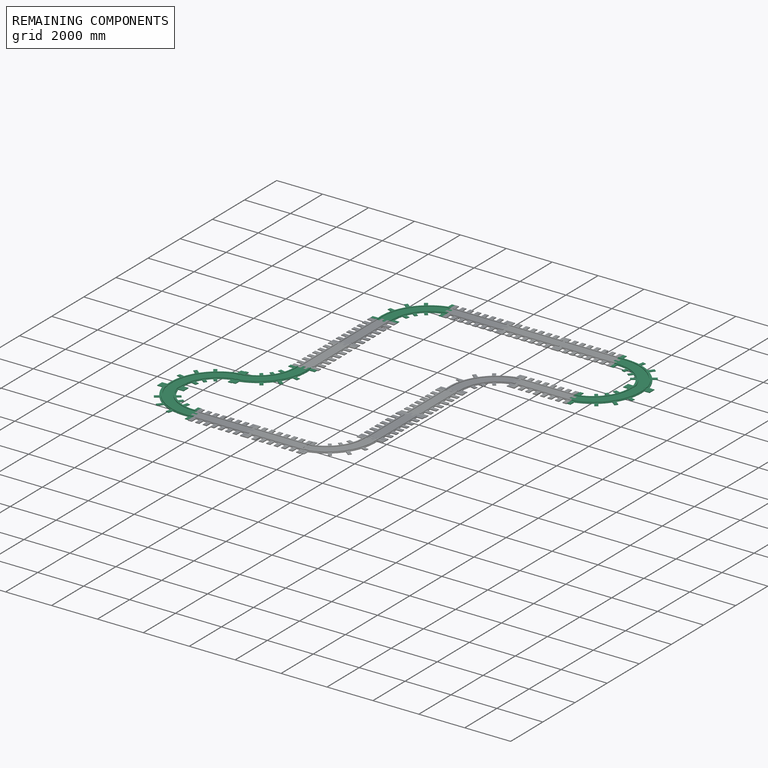
[diagram: remaining components — assembled]
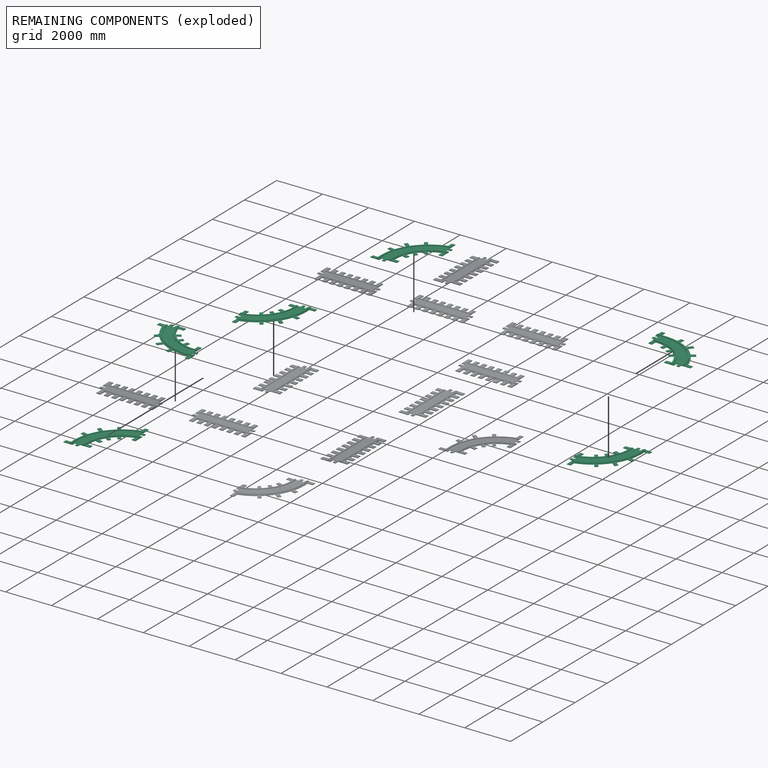
[diagram: remaining components — exploded]
REMAINING COMPONENTS (grouped) — the 6 components below fall outside the per-component tour by the significance rule stated above; both spotlight views highlight the whole group.
  P13: bounding box 2581.7 x 2050.4 x 50.8 mm, volume 57263386 mm^3. Recipe-attached (CADFS 00160971; recipe not printed under the significance rule). Held by: FASTENED mate "Fastened 17" to P9.
  P9: bounding box 2581.7 x 2050.4 x 50.8 mm, volume 57263386 mm^3. Recipe-attached (CADFS 00160971; recipe not printed under the significance rule). Held by: FASTENED mate "Fastened 17" to P13; FASTENED mate "Fastened 16" to P12.
  P7: bounding box 2581.7 x 2050.4 x 50.8 mm, volume 57263386 mm^3. Recipe-attached (CADFS 00160971; recipe not printed under the significance rule). Held by: FASTENED mate "Fastened 4" to P0; FASTENED mate "Fastened 3" to P15.
  P16: bounding box 2581.7 x 2050.4 x 50.8 mm, volume 57263386 mm^3. Recipe-attached (CADFS 00160971; recipe not printed under the significance rule). Held by: FASTENED mate "Fastened 9" to P5; FASTENED mate "Fastened 7" to P11.
  P12: bounding box 2581.7 x 2050.4 x 50.8 mm, volume 57263386 mm^3. Recipe-attached (CADFS 00160971; recipe not printed under the significance rule). Held by: FASTENED mate "Fastened 15" to P17; FASTENED mate "Fastened 16" to P9.
  P15: bounding box 2581.7 x 2050.4 x 50.8 mm, volume 57263386 mm^3. Recipe-attached (CADFS 00160971; recipe not printed under the significance rule). Held by: FASTENED mate "Fastened 2" to P14; FASTENED mate "Fastened 3" to P7.
PROVENANCE & LICENSES
Assembly (occurrences, transforms, mates, per-part STEP geometry): AutoMate dataset, Zenodo record 7776208, CC0.
Construction recipes: CADFS (HuggingFace VladPyatov/CADFS, CC-BY-4.0, layered over the ABC dataset), FeatureScript reconstruction programs keyed by ABC model id.
Join: ABC meta listings map ABC model id -> Onshape documentId; within a shared document, parts are matched by geometric signature (bounding-box dims + volume at 0.1% relative tolerance, exact B-rep face/solid counts).
Verification: 18 of this assembly's 18 components carry a recipe attachment, and every attachment is mesh-verified: the CADFS STEP and the AutoMate member STEP were compared as meshes in their shared local frame (symmetric sampled-point-to-mesh distance); worst across the 18 attachments: below the mesh-comparison resolution (tessellation chordal tolerance ~4.95 mm) on a 3297 mm part.
Renders: orthographic iso camera (az 35 / el 25); the floor grid conveys scale (grid pitch printed in each image; no ruler). In the exploded view each component is displaced by its stored offset vector: the offsets alone carry the explosion direction (mate normal/axis signs are not orientation cues and do not encode it), and separation distances are assigned per mate-chain, not proportionally to assembly-order depth.
